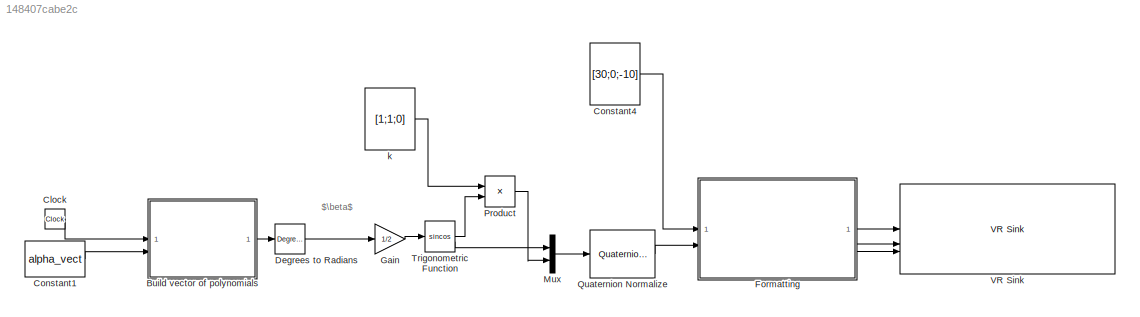
MODEL slx_148407cabe2c
KIND model
CONFIG AbsTol = auto
CONFIG EnableMultiTasking = on
CONFIG FixedStep = auto
CONFIG MaxStep = auto
CONFIG MinStep = auto
CONFIG RelTol = 1e-3
CONFIG SampleTimeConstraint = Unconstrained
CONFIG SolverName = ode45
CONFIG StartTime = 0.0
CONFIG StopTime = 10
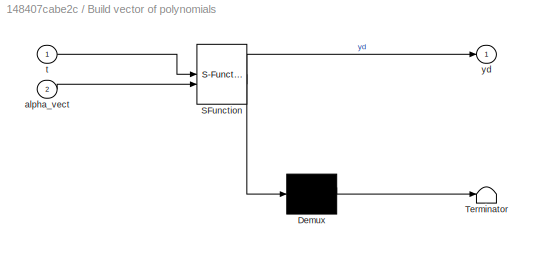
BLOCK [SubSystem] Build vector of polynomials
  ErrorFcn = Stateflow.Translate.translate
  PermitHierarchicalResolution = ExplicitOnly
  SFBlockType = MATLAB Function
  TreatAsAtomicUnit = on
BLOCK [Demux] Build vector of polynomials/ Demux 
  Outputs = 1
BLOCK [S-Function] Build vector of polynomials/ SFunction 
  EnableBusSupport = on
  FunctionName = sf_sfun
  PortCounts = [2 2]
  SFcnIsStateOwnerBlock = off
  SFunctionDeploymentMode = off
  Tag = Stateflow S-Function 1
BLOCK [Terminator] Build vector of polynomials/ Terminator 
BLOCK [Inport] Build vector of polynomials/alpha_vect
  Port = 2
BLOCK [Inport] Build vector of polynomials/t
BLOCK [Outport] Build vector of polynomials/yd
BLOCK [Clock] Clock
BLOCK [Constant] Constant1
  Value = alpha_vect
  VectorParams1D = off
BLOCK [Constant] Constant4
  Value = [30;0;-10]
  VectorParams1D = off
BLOCK [Reference] Degrees to Radians  REF=simulink_extras/Transformations/Degrees to
Radians
  SourceBlock = simulink_extras/Transformations/Degrees to\nRadians
  SourceType = DegreesToRadians
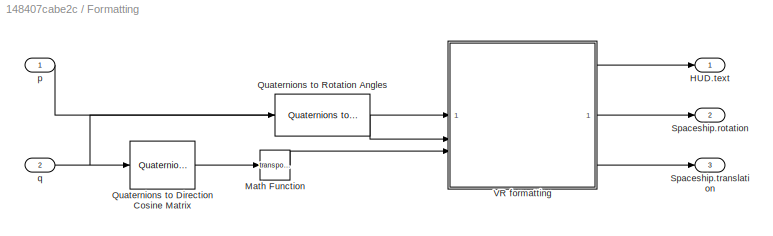
BLOCK [SubSystem] Formatting
BLOCK [Outport] Formatting/HUD.text
BLOCK [Math] Formatting/Math Function
  Operator = transpose
BLOCK [Reference] Formatting/Quaternions to Direction Cosine Matrix  REF=sharedtransform/Quaternions to 
Direction Cosine Matrix
  LibrarySourceBlock = aerolibtransform2/Quaternions to \nDirection Cosine Matrix
  SourceBlock = sharedtransform/Quaternions to \nDirection Cosine Matrix
  SourceType = Quaternion2DCM
BLOCK [Reference] Formatting/Quaternions to Rotation Angles  REF=sharedtransform/Quaternions to Rotation Angles
  AttributesFormatString = Rotation Order: %<rotationOrder>
  LibrarySourceBlock = aerolibtransform2/Quaternions to Rotation Angles
  SourceBlock = sharedtransform/Quaternions to Rotation Angles
  SourceType = Quat2Ang
BLOCK [Outport] Formatting/Spaceship.rotation
  Port = 2
BLOCK [Outport] Formatting/Spaceship.translation
  Port = 3
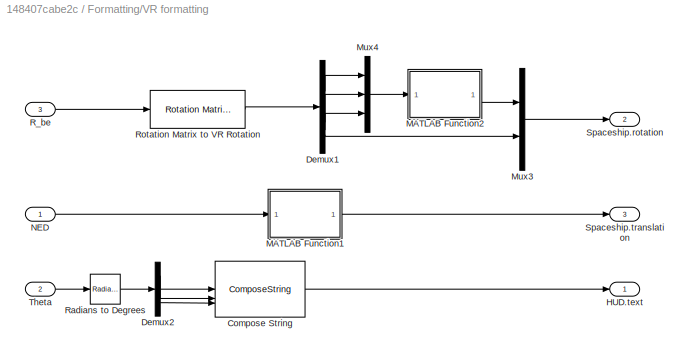
BLOCK [SubSystem] Formatting/VR formatting
BLOCK [ComposeString] Formatting/VR formatting/Compose String
  Format = 'Roll    : %7.2f deg\nPitch   : %7.2f deg\nYaw     : %7.2f deg'
BLOCK [Demux] Formatting/VR formatting/Demux1
BLOCK [Demux] Formatting/VR formatting/Demux2
  Outputs = 3
BLOCK [Outport] Formatting/VR formatting/HUD.text
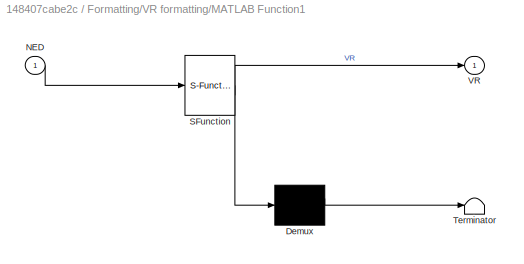
BLOCK [SubSystem] Formatting/VR formatting/MATLAB Function1
  ErrorFcn = Stateflow.Translate.translate
  PermitHierarchicalResolution = ExplicitOnly
  SFBlockType = MATLAB Function
  TreatAsAtomicUnit = on
BLOCK [Demux] Formatting/VR formatting/MATLAB Function1/ Demux 
  Outputs = 1
BLOCK [S-Function] Formatting/VR formatting/MATLAB Function1/ SFunction 
  EnableBusSupport = on
  FunctionName = sf_sfun
  PortCounts = [1 2]
  SFcnIsStateOwnerBlock = off
  SFunctionDeploymentMode = off
  Tag = Stateflow S-Function 5
BLOCK [Terminator] Formatting/VR formatting/MATLAB Function1/ Terminator 
BLOCK [Inport] Formatting/VR formatting/MATLAB Function1/NED
BLOCK [Outport] Formatting/VR formatting/MATLAB Function1/VR
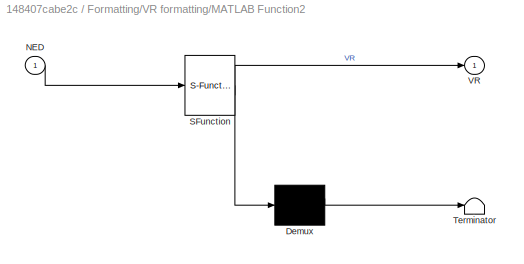
BLOCK [SubSystem] Formatting/VR formatting/MATLAB Function2
  ErrorFcn = Stateflow.Translate.translate
  PermitHierarchicalResolution = ExplicitOnly
  SFBlockType = MATLAB Function
  TreatAsAtomicUnit = on
BLOCK [Demux] Formatting/VR formatting/MATLAB Function2/ Demux 
  Outputs = 1
BLOCK [S-Function] Formatting/VR formatting/MATLAB Function2/ SFunction 
  EnableBusSupport = on
  FunctionName = sf_sfun
  PortCounts = [1 2]
  SFcnIsStateOwnerBlock = off
  SFunctionDeploymentMode = off
  Tag = Stateflow S-Function 6
BLOCK [Terminator] Formatting/VR formatting/MATLAB Function2/ Terminator 
BLOCK [Inport] Formatting/VR formatting/MATLAB Function2/NED
BLOCK [Outport] Formatting/VR formatting/MATLAB Function2/VR
BLOCK [Mux] Formatting/VR formatting/Mux3
  DisplayOption = bar
  Inputs = 2
BLOCK [Mux] Formatting/VR formatting/Mux4
  DisplayOption = bar
  Inputs = 3
BLOCK [Inport] Formatting/VR formatting/NED
BLOCK [Inport] Formatting/VR formatting/R_be
  Port = 3
BLOCK [Reference] Formatting/VR formatting/Radians to Degrees  REF=simulink_extras/Transformations/Radians
to Degrees
  SourceBlock = simulink_extras/Transformations/Radians\nto Degrees
  SourceType = RadiansToDegrees
BLOCK [Reference] Formatting/VR formatting/Rotation Matrix to VR Rotation  REF=vrlib/Utilities/Rotation Matrix
to VR Rotation
  SourceBlock = vrlib/Utilities/Rotation Matrix\nto VR Rotation
  SourceType = Rotation Matrix to VR Rotation
BLOCK [Outport] Formatting/VR formatting/Spaceship.rotation
  Port = 2
BLOCK [Outport] Formatting/VR formatting/Spaceship.translation
  Port = 3
BLOCK [Inport] Formatting/VR formatting/Theta
  Port = 2
BLOCK [Inport] Formatting/p
BLOCK [Inport] Formatting/q
  Port = 2
BLOCK [Gain] Gain
  Gain = 1/2
BLOCK [Mux] Mux
  DisplayOption = bar
  Inputs = 2
BLOCK [Product] Product
BLOCK [Reference] Quaternion Normalize  REF=sharedutil/Quaternion
Normalize
  LibrarySourceBlock = aerolibutil/Quaternion\nNormalize
  SourceBlock = sharedutil/Quaternion\nNormalize
  SourceType = Quaternion Normalize
BLOCK [Trigonometry] Trigonometric Function
  Operator = sincos
BLOCK [Reference] VR Sink  REF=vrlib/VR Sink
  InstantiateOnLoad = on
  SourceBlock = vrlib/VR Sink
  SourceType = Virtual Reality Sink
BLOCK [Constant] k
  Value = [1;1;0]
  VectorParams1D = off
ANNOTATION (root): $\beta$
LINE Build vector of polynomials:1 -> Degrees to Radians:1
LINE Clock:1 -> Build vector of polynomials:1
LINE Constant1:1 -> Build vector of polynomials:2
LINE Constant4:1 -> Formatting:1
LINE Degrees to Radians:1 -> Gain:1
LINE Formatting/Math Function:1 -> Formatting/VR formatting:3
LINE Formatting/Quaternions to Direction Cosine Matrix:1 -> Formatting/Math Function:1
LINE Formatting/Quaternions to Rotation Angles:1 -> Formatting/VR formatting:2
LINE Formatting/VR formatting/Compose String:1 -> Formatting/VR formatting/HUD.text:1
LINE Formatting/VR formatting/Demux1:1 -> Formatting/VR formatting/Mux4:1
LINE Formatting/VR formatting/Demux1:2 -> Formatting/VR formatting/Mux4:2
LINE Formatting/VR formatting/Demux1:3 -> Formatting/VR formatting/Mux4:3
LINE Formatting/VR formatting/Demux1:4 -> Formatting/VR formatting/Mux3:2
LINE Formatting/VR formatting/Demux2:1 -> Formatting/VR formatting/Compose String:1
LINE Formatting/VR formatting/Demux2:2 -> Formatting/VR formatting/Compose String:2
LINE Formatting/VR formatting/Demux2:3 -> Formatting/VR formatting/Compose String:3
LINE Formatting/VR formatting/MATLAB Function1:1 -> Formatting/VR formatting/Spaceship.translation:1
LINE Formatting/VR formatting/MATLAB Function2:1 -> Formatting/VR formatting/Mux3:1
LINE Formatting/VR formatting/Mux3:1 -> Formatting/VR formatting/Spaceship.rotation:1
LINE Formatting/VR formatting/Mux4:1 -> Formatting/VR formatting/MATLAB Function2:1
LINE Formatting/VR formatting/NED:1 -> Formatting/VR formatting/MATLAB Function1:1
LINE Formatting/VR formatting/R_be:1 -> Formatting/VR formatting/Rotation Matrix to VR Rotation:1
LINE Formatting/VR formatting/Radians to Degrees:1 -> Formatting/VR formatting/Demux2:1
LINE Formatting/VR formatting/Rotation Matrix to VR Rotation:1 -> Formatting/VR formatting/Demux1:1
LINE Formatting/VR formatting/Theta:1 -> Formatting/VR formatting/Radians to Degrees:1
LINE Formatting/VR formatting:1 -> Formatting/HUD.text:1
LINE Formatting/VR formatting:2 -> Formatting/Spaceship.rotation:1
LINE Formatting/VR formatting:3 -> Formatting/Spaceship.translation:1
LINE Formatting/p:1 -> Formatting/VR formatting:1
NET Formatting/q:1 -> Formatting/Quaternions to Direction Cosine Matrix:1, Formatting/Quaternions to Rotation Angles:1
LINE Formatting:1 -> VR Sink:1
LINE Formatting:2 -> VR Sink:2
LINE Formatting:3 -> VR Sink:3
LINE Gain:1 -> Trigonometric Function:1
LINE Mux:1 -> Quaternion Normalize:1
LINE Product:1 -> Mux:2
LINE Quaternion Normalize:1 -> Formatting:2
LINE Trigonometric Function:1 -> Product:2
LINE Trigonometric Function:2 -> Mux:1
LINE k:1 -> Product:1
note: NET lines group one-source signal fan-out (src -> all destinations, sorted); 1:1 wires keep LINE
CHART Formatting/VR formatting/MATLAB Function1 states=1 transitions=1
  STATE_LABEL 'eML_blk_kernel()'
  STATE_LABEL 'SCRIPT:\nfunction VR = NED2VR(NED)\n\nx = NED(1); % north\ny = NED(2); % east \nz = NED(3); % down\n\nVR = [ -y ; -z ; x ];\n'
CHART Formatting/VR formatting/MATLAB Function2 states=1 transitions=1
  STATE_LABEL 'eML_blk_kernel()'
  STATE_LABEL 'SCRIPT:\nfunction VR = NED2VR(NED)\n\nx = NED(1); % north\ny = NED(2); % east \nz = NED(3); % down\n\nVR = [ -y ; -z ; x ];\n'
CHART Build vector of polynomials states=1 transitions=1
  STATE_LABEL 'eML_blk_kernel()'
  STATE_LABEL "SCRIPT:\nfunction yd = fcn(t,alpha_vect)\n\n\n    t_vect0 = [ 1 ; t ; t^2 ; t^3 ; t^4 ; t^5 ]; % vector of t values\n \n\n\nyd = t_vect0'*alpha_vect;\n"
CHART  states=0 transitions=0
CHART  states=0 transitions=0
CHART  states=0 transitions=0
